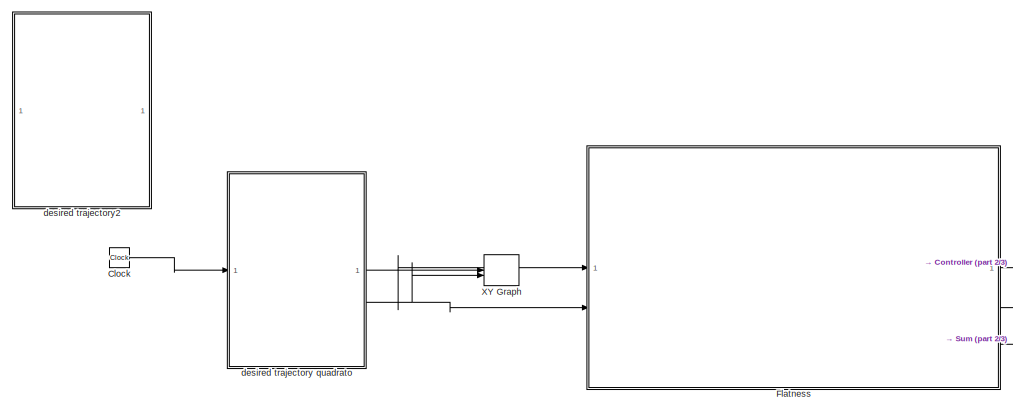
[diagram: root canvas - part 1/3, top left region]
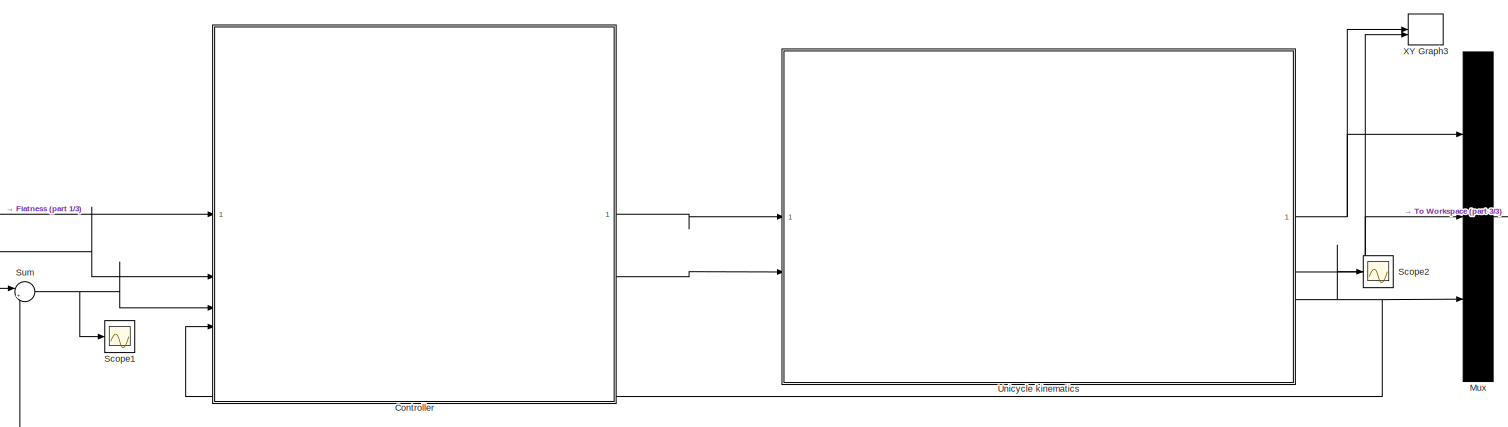
[diagram: root canvas - part 2/3, central region]
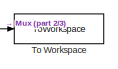
[diagram: root canvas - part 3/3, middle right region]
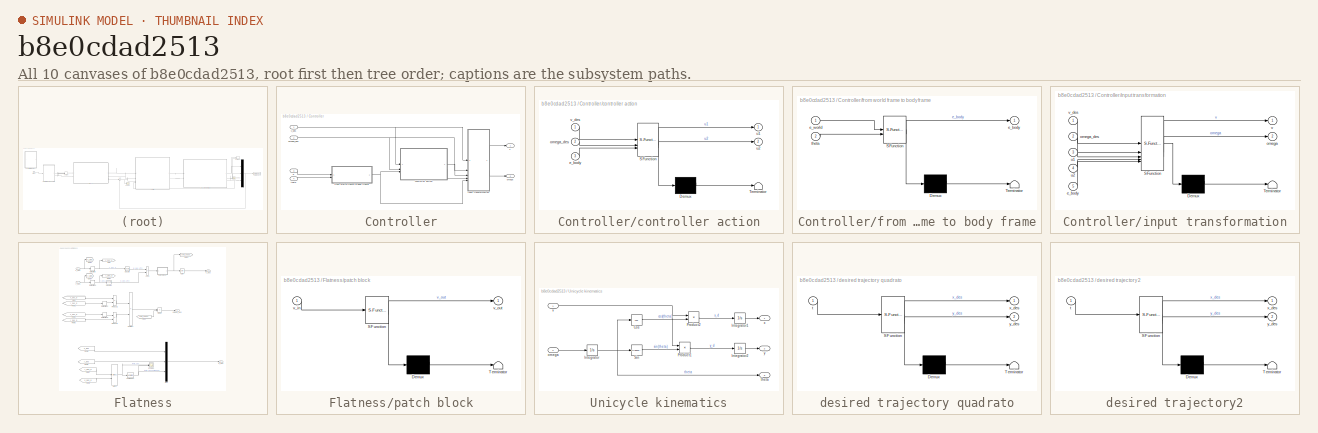
[diagram: thumbnail index - all 10 canvases of the model, root first then tree order]
MODEL slx_b8e0cdad2513
KIND model
CONFIG AbsTol = auto
CONFIG EnableMultiTasking = off
CONFIG FixedStep = 1e-3
CONFIG MaxStep = 0.01
CONFIG MinStep = auto
CONFIG RelTol = 1e-3
CONFIG SampleTimeConstraint = Unconstrained
CONFIG SolverName = ode5
CONFIG StartTime = 0.0
CONFIG StopTime = 40
BLOCK [Clock] Clock
BLOCK [SubSystem] Controller
BLOCK [SubSystem] Controller/controller action
  ErrorFcn = Stateflow.Translate.translate
  PermitHierarchicalResolution = ExplicitOnly
  SFBlockType = MATLAB Function
  TreatAsAtomicUnit = on
BLOCK [Demux] Controller/controller action/ Demux 
  Outputs = 1
BLOCK [S-Function] Controller/controller action/ SFunction 
  EnableBusSupport = off
  FunctionName = sf_sfun
  PortCounts = [3 3]
  SFcnIsStateOwnerBlock = off
  SFunctionDeploymentMode = off
  Tag = Stateflow S-Function 1
BLOCK [Terminator] Controller/controller action/ Terminator 
BLOCK [Inport] Controller/controller action/e_body
  Port = 3
BLOCK [Inport] Controller/controller action/omega_des
  Port = 2
BLOCK [Outport] Controller/controller action/u1
BLOCK [Outport] Controller/controller action/u2
  Port = 2
BLOCK [Inport] Controller/controller action/v_des
BLOCK [Inport] Controller/e
  Port = 3
BLOCK [SubSystem] Controller/from world frame to body frame
  ErrorFcn = Stateflow.Translate.translate
  PermitHierarchicalResolution = ExplicitOnly
  SFBlockType = MATLAB Function
  TreatAsAtomicUnit = on
BLOCK [Demux] Controller/from world frame to body frame/ Demux 
  Outputs = 1
BLOCK [S-Function] Controller/from world frame to body frame/ SFunction 
  EnableBusSupport = off
  FunctionName = sf_sfun
  PortCounts = [2 2]
  SFcnIsStateOwnerBlock = off
  SFunctionDeploymentMode = off
  Tag = Stateflow S-Function 2
BLOCK [Terminator] Controller/from world frame to body frame/ Terminator 
BLOCK [Outport] Controller/from world frame to body frame/e_body
BLOCK [Inport] Controller/from world frame to body frame/e_world
BLOCK [Inport] Controller/from world frame to body frame/theta
  Port = 2
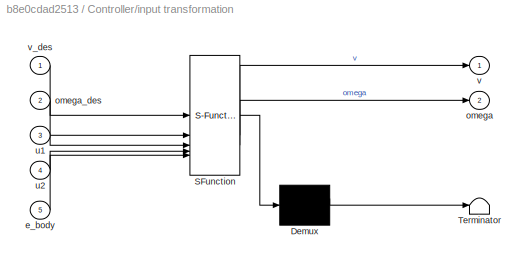
BLOCK [SubSystem] Controller/input transformation
  ErrorFcn = Stateflow.Translate.translate
  PermitHierarchicalResolution = ExplicitOnly
  SFBlockType = MATLAB Function
  TreatAsAtomicUnit = on
BLOCK [Demux] Controller/input transformation/ Demux 
  Outputs = 1
BLOCK [S-Function] Controller/input transformation/ SFunction 
  EnableBusSupport = off
  FunctionName = sf_sfun
  PortCounts = [5 3]
  SFcnIsStateOwnerBlock = off
  SFunctionDeploymentMode = off
  Tag = Stateflow S-Function 3
BLOCK [Terminator] Controller/input transformation/ Terminator 
BLOCK [Inport] Controller/input transformation/e_body
  Port = 5
BLOCK [Outport] Controller/input transformation/omega
  Port = 2
BLOCK [Inport] Controller/input transformation/omega_des
  Port = 2
BLOCK [Inport] Controller/input transformation/u1
  Port = 3
BLOCK [Inport] Controller/input transformation/u2
  Port = 4
BLOCK [Outport] Controller/input transformation/v
BLOCK [Inport] Controller/input transformation/v_des
BLOCK [Outport] Controller/omega
  Port = 2
BLOCK [Inport] Controller/omega_des
  Port = 2
BLOCK [Inport] Controller/theta
  Port = 4
BLOCK [Outport] Controller/v
BLOCK [Inport] Controller/v_des
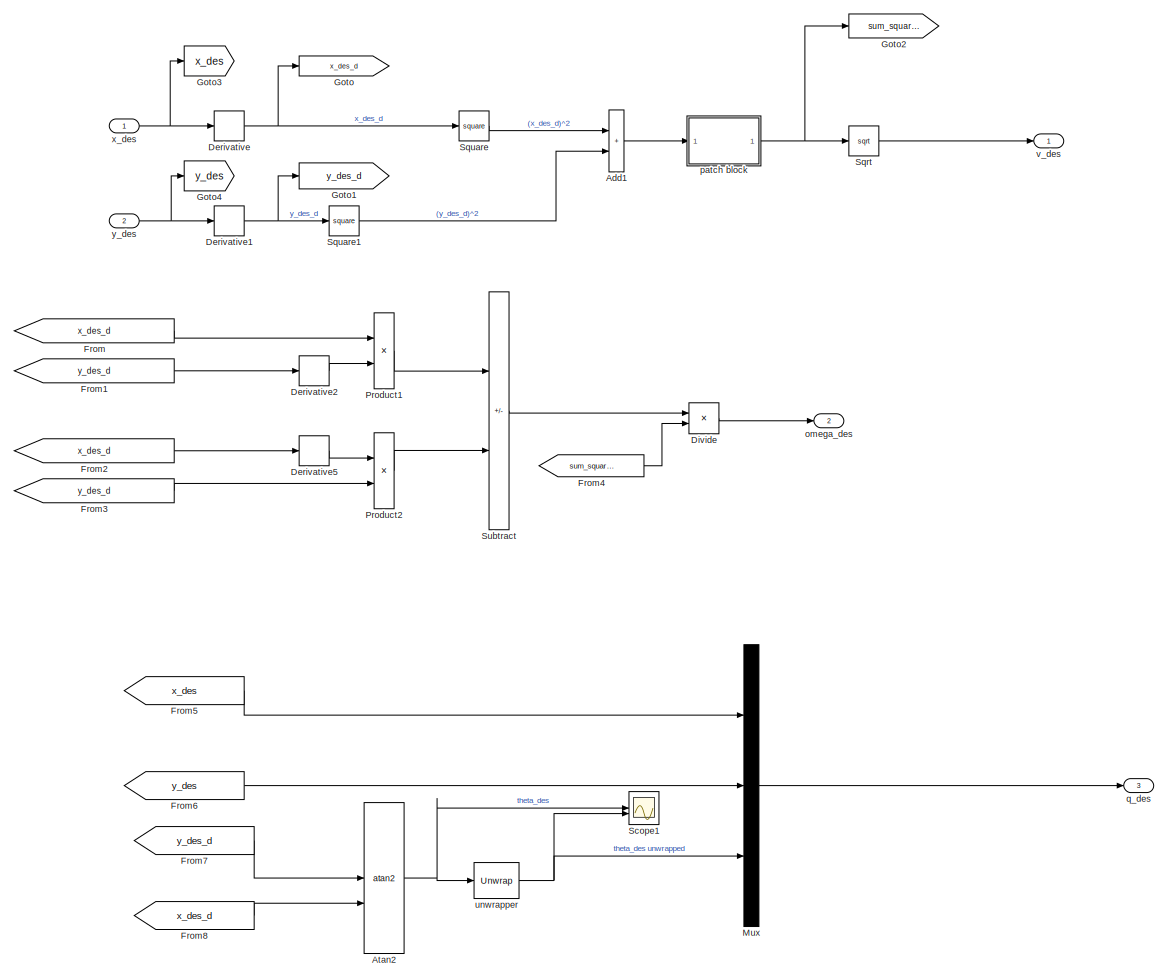
[diagram: Flatness - part 1/1, most of the canvas]
BLOCK [SubSystem] Flatness
BLOCK [Sum] Flatness/Add1
  IconShape = rectangular
BLOCK [Trigonometry] Flatness/Atan2
  Operator = atan2
BLOCK [Derivative] Flatness/Derivative
BLOCK [Derivative] Flatness/Derivative1
BLOCK [Derivative] Flatness/Derivative2
BLOCK [Derivative] Flatness/Derivative5
BLOCK [Product] Flatness/Divide
  Inputs = */
BLOCK [From] Flatness/From
  GotoTag = x_des_d
BLOCK [From] Flatness/From1
  GotoTag = y_des_d
BLOCK [From] Flatness/From2
  GotoTag = x_des_d
BLOCK [From] Flatness/From3
  GotoTag = y_des_d
BLOCK [From] Flatness/From4
  GotoTag = sum_squares
BLOCK [From] Flatness/From5
  GotoTag = x_des
BLOCK [From] Flatness/From6
  GotoTag = y_des
BLOCK [From] Flatness/From7
  GotoTag = y_des_d
BLOCK [From] Flatness/From8
  GotoTag = x_des_d
BLOCK [Goto] Flatness/Goto
  GotoTag = x_des_d
BLOCK [Goto] Flatness/Goto1
  GotoTag = y_des_d
BLOCK [Goto] Flatness/Goto2
  GotoTag = sum_squares
BLOCK [Goto] Flatness/Goto3
  GotoTag = x_des
BLOCK [Goto] Flatness/Goto4
  GotoTag = y_des
BLOCK [Mux] Flatness/Mux
  DisplayOption = bar
  Inputs = 3
BLOCK [Product] Flatness/Product1
BLOCK [Product] Flatness/Product2
BLOCK [Scope] Flatness/Scope1
  ActiveDisplayYMaximum = 5.497787143782138
  ActiveDisplayYMinimum = -2.3561944901923448
  DataLoggingDecimateData = on
  DataLoggingDecimation = 1
  DataLoggingSaveFormat = Array
  DataLoggingVariableName = ScopeData2
  Floating = off
  GraphicalSettings = {"Style":{"BackgroundColor":[0.12941176470588237,0.12941176470588237,0.12941176470588237],"AxesColor":[0.07058823529411765,0.07058823529411765,0.07058823529411765],"LabelsColor":[0.8509803921568627,0.8509803921568627,0.8509803921568627],"PreserveColors":false,"Visible":[true,true],"LineStyle":["-","-"],"LineWidth":[1.5,1.5],"BarWidth":[0.9,0.9],"LineColor":["auto","auto"],"LineFaceAlpha":[1,1],"Li...<+2136ch>
  MultipleDisplayCache = [{"MaxYLimMag":5.497787143782138,"MaxYLimReal":5.497787143782138,"MinYLimMag":0,"MinYLimReal":-2.3561944901923448,"PlotAsMagnitudePhase":false,"ShowGrid":true,"ShowLegend":true,"Title":"%<SignalLabel>","YLabel":""}]
  NumInputPorts = 2
  ScopeFrameLocation = window
  ShowLegend = on
  WasSavedAsWebScope = on
  WindowPosition = [1.000000,41.000000,2560.000000,1377.000000,]
BLOCK [Sqrt] Flatness/Sqrt
BLOCK [Math] Flatness/Square
  Operator = square
BLOCK [Math] Flatness/Square1
  Operator = square
BLOCK [Sum] Flatness/Subtract
  IconShape = rectangular
  Inputs = +-
BLOCK [Outport] Flatness/omega_des
  Port = 2
BLOCK [SubSystem] Flatness/patch block
  ErrorFcn = Stateflow.Translate.translate
  PermitHierarchicalResolution = ExplicitOnly
  SFBlockType = MATLAB Function
  TreatAsAtomicUnit = on
BLOCK [Demux] Flatness/patch block/ Demux 
  Outputs = 1
BLOCK [S-Function] Flatness/patch block/ SFunction 
  EnableBusSupport = off
  FunctionName = sf_sfun
  PortCounts = [1 2]
  SFcnIsStateOwnerBlock = off
  SFunctionDeploymentMode = off
  Tag = Stateflow S-Function 5
BLOCK [Terminator] Flatness/patch block/ Terminator 
BLOCK [Inport] Flatness/patch block/v_in
BLOCK [Outport] Flatness/patch block/v_out
BLOCK [Outport] Flatness/q_des
  Port = 3
BLOCK [Reference] Flatness/unwrapper  REF=dspsigops/Unwrap
  SourceBlock = dspsigops/Unwrap
  SourceType = Unwrap
  UserDataPersistent = on
BLOCK [Outport] Flatness/v_des
BLOCK [Inport] Flatness/x_des
BLOCK [Inport] Flatness/y_des
  Port = 2
BLOCK [Mux] Mux
  DisplayOption = bar
  Inputs = 3
BLOCK [Scope] Scope1
  ActiveDisplayYMaximum = 1
  ActiveDisplayYMinimum = -1
  DataLoggingDecimateData = on
  DataLoggingDecimation = 1
  DataLoggingSaveFormat = Array
  DataLoggingVariableName = ScopeData3
  Floating = off
  GraphicalSettings = {"Style":{"BackgroundColor":[0.12941176470588237,0.12941176470588237,0.12941176470588237],"AxesColor":[0.07058823529411765,0.07058823529411765,0.07058823529411765],"LabelsColor":[0.8509803921568627,0.8509803921568627,0.8509803921568627],"PreserveColors":false,"Visible":[true,true,true],"LineStyle":["-","-","-"],"LineWidth":[1.5,1.5,1.5],"BarWidth":[0.9,0.9,0.9],"LineColor":["auto","auto","auto"],"...<+2239ch>
  MultipleDisplayCache = [{"MaxYLimMag":1,"MaxYLimReal":1,"MinYLimMag":0,"MinYLimReal":-1,"PlotAsMagnitudePhase":false,"ShowGrid":true,"ShowLegend":false,"Title":"%<SignalLabel>","YLabel":""}]
  NumInputPorts = 1
  ScopeFrameLocation = window
  WasSavedAsWebScope = on
  WindowPosition = [1.000000,41.000000,2560.000000,1377.000000,]
BLOCK [Scope] Scope2
  ActiveDisplayYMaximum = 10.422944252013369
  ActiveDisplayYMinimum = -1.1717356950439886
  DataLoggingDecimateData = on
  DataLoggingDecimation = 1
  DataLoggingSaveFormat = Array
  Floating = off
  GraphicalSettings = {"AxesScalingProperties":{"AlignXAxis":"Center","AlignYAxis":"Center","AutoScaleXAxisLimits":false,"AxesScaling":"Manual","AxesScalingNumUpdates":10,"ExpandOnly":true,"ScaleAxesLimitsAtStop":false,"XAxisDataRange":100,"YAxisDataRange":80},"DisplayProperties":{"ColorOrder":["auto","auto","auto","auto","auto","auto","auto","auto","auto","auto","auto","auto","auto","auto","auto","auto","auto","auto",...<+2012ch>
  MultipleDisplayCache = [{"MaxYLimMag":10.422944252013369,"MaxYLimReal":10.422944252013369,"MinYLimMag":0,"MinYLimReal":-1.1717356950439886,"PlotAsMagnitudePhase":false,"ShowGrid":true,"ShowLegend":false,"Title":"%<SignalLabel>","YLabel":""}]
  NumInputPorts = 1
  ScopeFrameLocation = window
  WasSavedAsWebScope = on
  WindowPosition = [1.000000,41.000000,2560.000000,1377.000000,]
BLOCK [Sum] Sum
  Inputs = |+-
BLOCK [ToWorkspace] To Workspace
  FixptAsFi = on
  MaxDataPoints = inf
  SampleTime = -1
  SaveFormat = Timeseries
  VariableName = sim_pose
BLOCK [SubSystem] Unicycle kinematics
BLOCK [Trigonometry] Unicycle kinematics/Cos
  Operator = cos
BLOCK [Integrator] Unicycle kinematics/Integrator
BLOCK [Integrator] Unicycle kinematics/Integrator1
BLOCK [Integrator] Unicycle kinematics/Integrator2
BLOCK [Product] Unicycle kinematics/Product1
BLOCK [Product] Unicycle kinematics/Product2
BLOCK [Trigonometry] Unicycle kinematics/Sin
BLOCK [Inport] Unicycle kinematics/omega
  Port = 2
BLOCK [Outport] Unicycle kinematics/theta
  Port = 3
BLOCK [Inport] Unicycle kinematics/v
BLOCK [Outport] Unicycle kinematics/x
BLOCK [Outport] Unicycle kinematics/y
  Port = 2
BLOCK [Record] XY Graph
  CompatibilityTag = XY
  FileSettingsInternal = {"entries":[{"content":{"excelSettings":{"content":{},"type":"Streamout.ExcelSettings"},"parquetSettings":{"content":{},"type":"Streamout.ParquetSettings"}},"type":"Streamout.FileSettingStorage","uuid":""}],"packageUris":["http:\/\/schema.mathworks.com\/mf0\/streamout_blocks\/R2020a"],"version":"1.0"}
  FrameSettings = [0, 0]
  Layout = [1 1]
  NumPorts = 2.0
  SignalsInternal = {"entries":[{"content":{"signals":[{"content":{"blockPath":[],"dimensions":[1],"domain":"","lineColor":"#a2142f","plots":[ 1 ],"port":1,"sid":[""],"signalID":1,"signalName":"desired trajectory quadrato:1"},"type":"RecordBlkView.Signal","uuid":""},{"content":{"blockPath":[],"dimensions":[1],"domain":"","lineColor":"#139fff","plots":[ 1 ],"port":2,"sid":[""],"signalID":2,"signalName":"desired trajec...<+204ch>
  VisualizationBindings = {"xyplotplugin":{"info":[{"series":[{"bindingParametersList":[{"parameter":"X-Axis","signalID":1,"signalName":"desired trajectory quadrato:1"},{"parameter":"Y-Axis","signalID":2,"signalName":"desired trajectory quadrato:2"}],"seriesID":0}],"subplotID":1}]}}
BLOCK [Record] XY Graph3
  CompatibilityTag = XY
  FileSettingsInternal = {"entries":[{"content":{"excelSettings":{"content":{},"type":"Streamout.ExcelSettings"},"parquetSettings":{"content":{},"type":"Streamout.ParquetSettings"}},"type":"Streamout.FileSettingStorage","uuid":""}],"packageUris":["http:\/\/schema.mathworks.com\/mf0\/streamout_blocks\/R2020a"],"version":"1.0"}
  FrameSettings = [0, 0]
  Layout = [1 1]
  NumPorts = 2.0
  SignalsInternal = {"entries":[{"content":{"signals":[{"content":{"blockPath":[],"dimensions":[1],"domain":"","lineColor":"#a2142f","plots":[ 1 ],"port":1,"sid":[""],"signalID":1,"signalName":"Unicycle kinematics:1"},"type":"RecordBlkView.Signal","uuid":""},{"content":{"blockPath":[],"dimensions":[1],"domain":"","lineColor":"#139fff","plots":[ 1 ],"port":2,"sid":[""],"signalID":2,"signalName":"Unicycle kinematics:2"...<+188ch>
  VisualizationBindings = {"xyplotplugin":{"info":[{"series":[{"bindingParametersList":[{"parameter":"X-Axis","signalID":1,"signalName":"Unicycle kinematics:1"},{"parameter":"Y-Axis","signalID":2,"signalName":"Unicycle kinematics:2"}],"seriesID":0}],"subplotID":1}]}}
BLOCK [SubSystem] desired trajectory quadrato
  ErrorFcn = Stateflow.Translate.translate
  PermitHierarchicalResolution = ExplicitOnly
  SFBlockType = MATLAB Function
  TreatAsAtomicUnit = on
BLOCK [Demux] desired trajectory quadrato/ Demux 
  Outputs = 1
BLOCK [S-Function] desired trajectory quadrato/ SFunction 
  EnableBusSupport = off
  FunctionName = sf_sfun
  PortCounts = [1 3]
  SFcnIsStateOwnerBlock = off
  SFunctionDeploymentMode = off
  Tag = Stateflow S-Function 6
BLOCK [Terminator] desired trajectory quadrato/ Terminator 
BLOCK [Inport] desired trajectory quadrato/t
BLOCK [Outport] desired trajectory quadrato/x_des
BLOCK [Outport] desired trajectory quadrato/y_des
  Port = 2
BLOCK [SubSystem] desired trajectory2
  ErrorFcn = Stateflow.Translate.translate
  PermitHierarchicalResolution = ExplicitOnly
  SFBlockType = MATLAB Function
  TreatAsAtomicUnit = on
BLOCK [Demux] desired trajectory2/ Demux 
  Outputs = 1
BLOCK [S-Function] desired trajectory2/ SFunction 
  EnableBusSupport = off
  FunctionName = sf_sfun
  PortCounts = [1 3]
  SFcnIsStateOwnerBlock = off
  SFunctionDeploymentMode = off
  Tag = Stateflow S-Function 7
BLOCK [Terminator] desired trajectory2/ Terminator 
BLOCK [Inport] desired trajectory2/t
BLOCK [Outport] desired trajectory2/x_des
BLOCK [Outport] desired trajectory2/y_des
  Port = 2
LINE Clock:1 -> desired trajectory quadrato:1
LINE Controller/controller action:1 -> Controller/input transformation:3
LINE Controller/controller action:2 -> Controller/input transformation:4
LINE Controller/e:1 -> Controller/from world frame to body frame:1
NET Controller/from world frame to body frame:1 -> Controller/controller action:3, Controller/input transformation:5
LINE Controller/input transformation:1 -> Controller/v:1
LINE Controller/input transformation:2 -> Controller/omega:1
NET Controller/omega_des:1 -> Controller/controller action:2, Controller/input transformation:2
LINE Controller/theta:1 -> Controller/from world frame to body frame:2
NET Controller/v_des:1 -> Controller/controller action:1, Controller/input transformation:1
LINE Controller:1 -> Unicycle kinematics:1
LINE Controller:2 -> Unicycle kinematics:2
LINE Flatness/Add1:1 -> Flatness/patch block:1
NET Flatness/Atan2:1 -> Flatness/Scope1:1, Flatness/unwrapper:1
NET Flatness/Derivative1:1 -> Flatness/Goto1:1, Flatness/Square1:1
LINE Flatness/Derivative2:1 -> Flatness/Product1:2
LINE Flatness/Derivative5:1 -> Flatness/Product2:1
NET Flatness/Derivative:1 -> Flatness/Goto:1, Flatness/Square:1
LINE Flatness/Divide:1 -> Flatness/omega_des:1
LINE Flatness/From1:1 -> Flatness/Derivative2:1
LINE Flatness/From2:1 -> Flatness/Derivative5:1
LINE Flatness/From3:1 -> Flatness/Product2:2
LINE Flatness/From4:1 -> Flatness/Divide:2
LINE Flatness/From5:1 -> Flatness/Mux:1
LINE Flatness/From6:1 -> Flatness/Mux:2
LINE Flatness/From7:1 -> Flatness/Atan2:1
LINE Flatness/From8:1 -> Flatness/Atan2:2
LINE Flatness/From:1 -> Flatness/Product1:1
LINE Flatness/Mux:1 -> Flatness/q_des:1
LINE Flatness/Product1:1 -> Flatness/Subtract:1
LINE Flatness/Product2:1 -> Flatness/Subtract:2
LINE Flatness/Sqrt:1 -> Flatness/v_des:1
LINE Flatness/Square1:1 -> Flatness/Add1:2
LINE Flatness/Square:1 -> Flatness/Add1:1
LINE Flatness/Subtract:1 -> Flatness/Divide:1
NET Flatness/patch block:1 -> Flatness/Goto2:1, Flatness/Sqrt:1
NET Flatness/unwrapper:1 -> Flatness/Mux:3, Flatness/Scope1:2
NET Flatness/x_des:1 -> Flatness/Derivative:1, Flatness/Goto3:1
NET Flatness/y_des:1 -> Flatness/Derivative1:1, Flatness/Goto4:1
LINE Flatness:1 -> Controller:1
LINE Flatness:2 -> Controller:2
LINE Flatness:3 -> Sum:1
NET Mux:1 -> Sum:2, To Workspace:1
NET Sum:1 -> Controller:3, Scope1:1
LINE Unicycle kinematics/Cos:1 -> Unicycle kinematics/Product2:2
LINE Unicycle kinematics/Integrator1:1 -> Unicycle kinematics/x:1
LINE Unicycle kinematics/Integrator2:1 -> Unicycle kinematics/y:1
NET Unicycle kinematics/Integrator:1 -> Unicycle kinematics/Cos:1, Unicycle kinematics/Sin:1, Unicycle kinematics/theta:1
LINE Unicycle kinematics/Product1:1 -> Unicycle kinematics/Integrator2:1
LINE Unicycle kinematics/Product2:1 -> Unicycle kinematics/Integrator1:1
LINE Unicycle kinematics/Sin:1 -> Unicycle kinematics/Product1:2
LINE Unicycle kinematics/omega:1 -> Unicycle kinematics/Integrator:1
NET Unicycle kinematics/v:1 -> Unicycle kinematics/Product1:1, Unicycle kinematics/Product2:1
NET Unicycle kinematics:1 -> Mux:1, XY Graph3:1
NET Unicycle kinematics:2 -> Mux:2, XY Graph3:2
NET Unicycle kinematics:3 -> Controller:4, Mux:3, Scope2:1
NET desired trajectory quadrato:1 -> Flatness:1, XY Graph:1
NET desired trajectory quadrato:2 -> Flatness:2, XY Graph:2
note: NET lines group one-source signal fan-out (src -> all destinations, sorted); 1:1 wires keep LINE
CHART Controller/controller action states=1 transitions=1
  STATE_LABEL 'eML_blk_kernel()'
  STATE_LABEL 'SCRIPT:\nfunction [u1, u2] = fcn(v_des, omega_des, e_body)\n\n% TO DO: parametri da modfiicare\nd = 1/sqrt(2);\na = 10;\n\n\n\n% parametri controllore\nk1 = 2*d*a;\n\n% if abs(v_des) < 1e-4\n%     if v_des >= 0\n%         v_des = 1e-4;\n%     else\n%         v_des = -1e-4;\n%     end\n% end\n\nk3 = k1;\nk2 = ( a^2-(omega_des)^2 ) / v_des;\n\nu1 = [-k1, 0, 0] * e_body;\nu2 = [0, -k2, -k3] * e_body;\n\n'
CHART Controller/from world frame to body frame states=1 transitions=1
  STATE_LABEL 'eML_blk_kernel()'
  STATE_LABEL 'SCRIPT:\nfunction e_body = fcn(e_world, theta)\n\n\n% Transformation matrix\nR = [cos(theta), sin(theta), 0; \n    -sin(theta), cos(theta), 0;\n    0, 0, 1];\n\n% get error in body frame\ne_body = R*e_world;\n'
CHART Controller/input transformation states=1 transitions=1
  STATE_LABEL 'eML_blk_kernel()'
  STATE_LABEL 'SCRIPT:\nfunction [v, omega] = fcn(v_des, omega_des, u1, u2, e_body)\n\n\nv = v_des * cos(e_body(3)) - u1;\nomega = omega_des - u2;\n'
CHART Flatness/patch block states=1 transitions=1
  STATE_LABEL 'eML_blk_kernel()'
  STATE_LABEL 'SCRIPT:\nfunction v_out = fcn(v_in)\n\nif abs(v_in) < 1e-4\n    if v_in >= 0\n        v_in = 1e-4;\n    else\n        v_in = -1e-4;\n    end\nend\nv_out = v_in;\n\n'
CHART desired trajectory quadrato states=1 transitions=1
  STATE_LABEL 'eML_blk_kernel()'
  STATE_LABEL 'SCRIPT:\nfunction [x_des, y_des] = fcn(t)\n\n% % configurable:\n% radius = 5;\n% omega_des = 0.2;\n% \n% % desired trajectory\n% x_des = -radius*cos(omega_des*t);\n% y_des = -radius*sin(omega_des*t);\n\n\n% % configurable:\n% radius = 10;\n% omega_des = 0.5;\n% \n% % desired trajectory\n% x_des = radius*cos(omega_des*t);\n% y_des = radius*sin(omega_des*t);\n% \n\n\nif t <= 10\n    x_des = 10+t;\n    y_des = 10;\nelseif  t...<+183ch>'
CHART desired trajectory2 states=1 transitions=1
  STATE_LABEL 'eML_blk_kernel()'
  STATE_LABEL 'SCRIPT:\nfunction [x_des, y_des] = fcn(t)\n\n% % configurable:\n% radius = 5;\n% omega_des = 0.2;\n% \n% % desired trajectory\n% x_des = -radius*cos(omega_des*t);\n% y_des = -radius*sin(omega_des*t);\n\n\n% configurable:\nradius = 20;\nomega_des = 5;\n\n% desired trajectory\nx_des = radius*cos(omega_des*t);\ny_des = radius*sin(omega_des*t);\n\n\n\n% if t<=10\n%     x_des = 10+t;\n%     y_des = 10;\n% elseif  t<=20\n%     x...<+186ch>'
CHART  states=0 transitions=0
CHART  states=0 transitions=0
CHART  states=0 transitions=0
CHART  states=0 transitions=0
CHART  states=0 transitions=0
CHART  states=0 transitions=0
